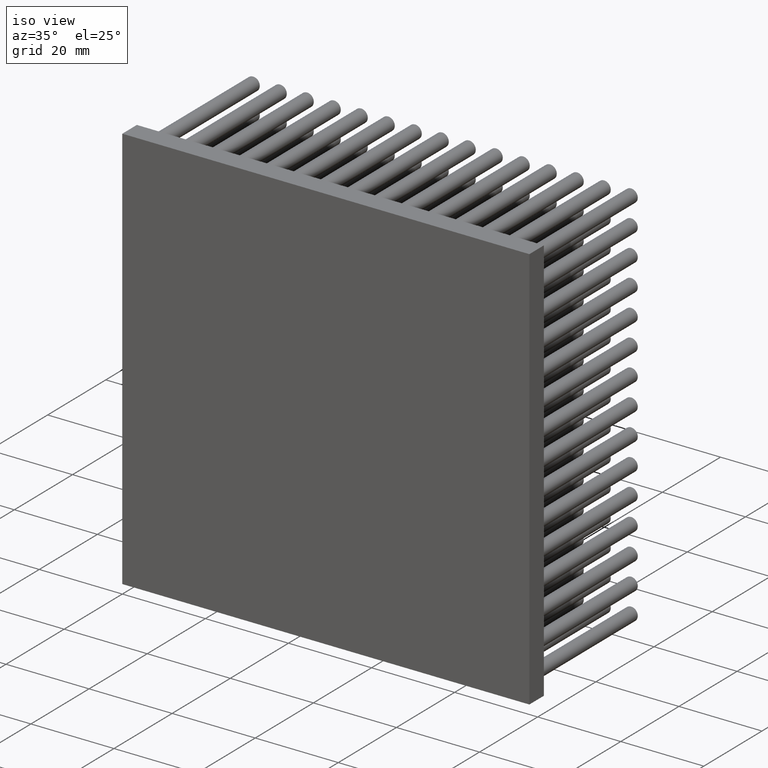
[diagram: clean part render]
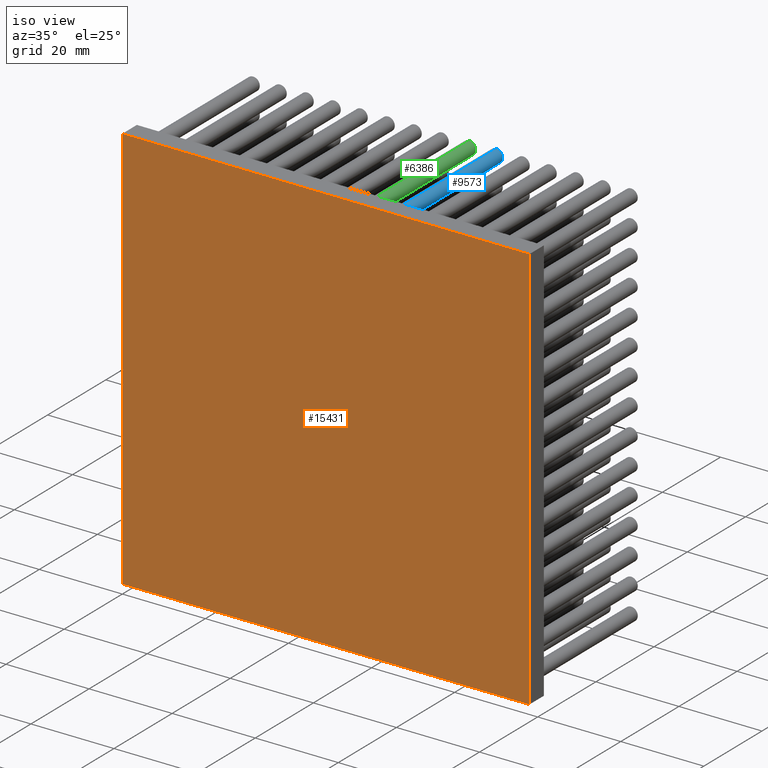
[diagram: same view with three faces highlighted in distinct colors, each labeled with its STEP entity id]
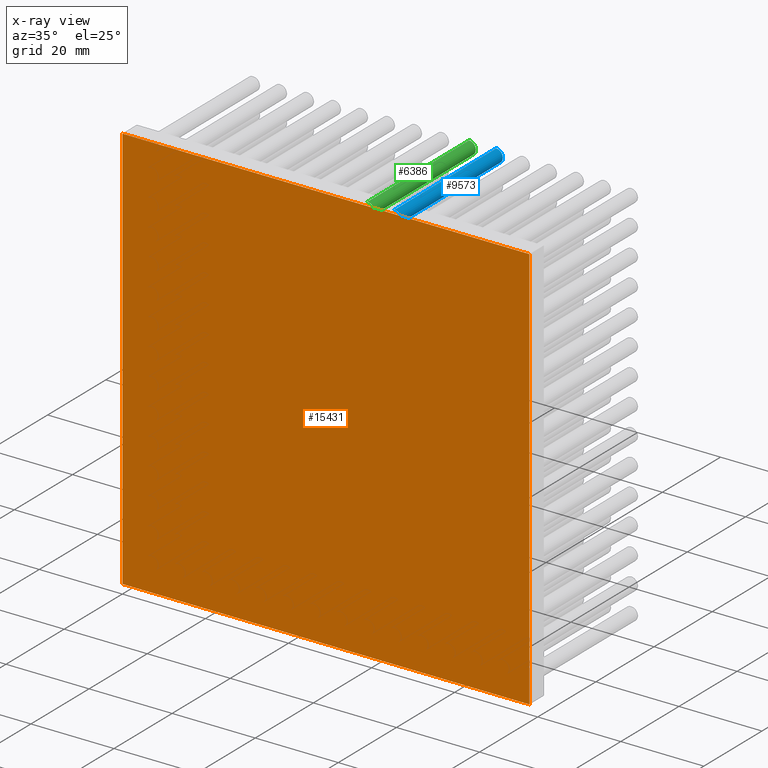
[diagram: x-ray of the same camera — body ghosted, the three highlighted faces saturated]
A machine part, iso view with three faces highlighted in distinct colors.
The next image is the same camera in x-ray (body ghosted, the three faces saturated) — at least one of them is partly hidden behind the body in this view.
Their STEP definitions:

[orange] entity #15431 — the highlighted planar face has unit normal (0, 1, 0).
#404 = CARTESIAN_POINT ( 'NONE',  ( 98.00000000000000000, 0.0000000000000000000, 0.0000000000000000000 ) ) ;
#792 = DIRECTION ( 'NONE',  ( 1.000000000000000000, 0.0000000000000000000, 0.0000000000000000000 ) ) ;
#1143 = DIRECTION ( 'NONE',  ( 1.224646799147353207E-16, 0.0000000000000000000, 1.000000000000000000 ) ) ;
#1345 = EDGE_CURVE ( 'NONE', #9358, #7000, #16054, .T. ) ;
#1599 = DIRECTION ( 'NONE',  ( 0.0000000000000000000, 1.000000000000000000, 0.0000000000000000000 ) ) ;
#2048 = DIRECTION ( 'NONE',  ( -1.416100796715760863E-16, -0.0000000000000000000, -1.000000000000000000 ) ) ;
#2992 = ORIENTED_EDGE ( 'NONE', *, *, #11688, .F. ) ;
#3655 = LINE ( 'NONE', #5297, #10957 ) ;
#4437 = ORIENTED_EDGE ( 'NONE', *, *, #1345, .F. ) ;
#5205 = LINE ( 'NONE', #17651, #11471 ) ;
#5297 = CARTESIAN_POINT ( 'NONE',  ( 0.0000000000000000000, 0.0000000000000000000, 0.0000000000000000000 ) ) ;
#6464 = LINE ( 'NONE', #13679, #12100 ) ;
#7000 = VERTEX_POINT ( 'NONE', #17023 ) ;
#8420 = CARTESIAN_POINT ( 'NONE',  ( 0.0000000000000000000, 0.0000000000000000000, 0.0000000000000000000 ) ) ;
#8573 = CARTESIAN_POINT ( 'NONE',  ( 0.0000000000000000000, 0.0000000000000000000, 0.0000000000000000000 ) ) ;
#8865 = EDGE_CURVE ( 'NONE', #10131, #9358, #5205, .T. ) ;
#9018 = ORIENTED_EDGE ( 'NONE', *, *, #9361, .F. ) ;
#9358 = VERTEX_POINT ( 'NONE', #16258 ) ;
#9361 = EDGE_CURVE ( 'NONE', #11012, #10131, #6464, .T. ) ;
#10131 = VERTEX_POINT ( 'NONE', #17372 ) ;
#10768 = VECTOR ( 'NONE', #2048, 1000.000000000000000 ) ;
#10841 = DIRECTION ( 'NONE',  ( -1.000000000000000000, -0.0000000000000000000, -0.0000000000000000000 ) ) ;
#10941 = EDGE_LOOP ( 'NONE', ( #9018, #2992, #4437, #15220 ) ) ;
#10957 = VECTOR ( 'NONE', #10841, 1000.000000000000000 ) ;
#11012 = VERTEX_POINT ( 'NONE', #8420 ) ;
#11471 = VECTOR ( 'NONE', #792, 1000.000000000000000 ) ;
#11688 = EDGE_CURVE ( 'NONE', #7000, #11012, #3655, .T. ) ;
#12100 = VECTOR ( 'NONE', #1143, 1000.000000000000000 ) ;
#12830 = DIRECTION ( 'NONE',  ( 0.0000000000000000000, -0.0000000000000000000, 1.000000000000000000 ) ) ;
#13305 = AXIS2_PLACEMENT_3D ( 'NONE', #8573, #1599, #12830 ) ;
#13679 = CARTESIAN_POINT ( 'NONE',  ( 0.0000000000000000000, 0.0000000000000000000, 0.0000000000000000000 ) ) ;
#15220 = ORIENTED_EDGE ( 'NONE', *, *, #8865, .F. ) ;
#15431 = ADVANCED_FACE ( 'NONE', ( #15584 ), #17148, .F. ) ;
#15584 = FACE_OUTER_BOUND ( 'NONE', #10941, .T. ) ;
#16054 = LINE ( 'NONE', #404, #10768 ) ;
#16258 = CARTESIAN_POINT ( 'NONE',  ( 98.00000000000001421, 0.0000000000000000000, 98.00000000000000000 ) ) ;
#17023 = CARTESIAN_POINT ( 'NONE',  ( 98.00000000000000000, 0.0000000000000000000, 0.0000000000000000000 ) ) ;
#17148 = PLANE ( 'NONE',  #13305 ) ;
#17372 = CARTESIAN_POINT ( 'NONE',  ( 1.200153863164406030E-14, 0.0000000000000000000, 98.00000000000000000 ) ) ;
#17651 = CARTESIAN_POINT ( 'NONE',  ( 1.200153863164406030E-14, 0.0000000000000000000, 98.00000000000000000 ) ) ;

[blue] entity #9573 — the highlighted cylindrical surface (edge-blend (fillet) strip) has radius 1.6 mm, axis along (-0, -1, -0).
#24 = AXIS2_PLACEMENT_3D ( 'NONE', #552, #11423, #288 ) ;
#288 = DIRECTION ( 'NONE',  ( 0.0000000000000000000, 0.0000000000000000000, 1.000000000000000000 ) ) ;
#552 = CARTESIAN_POINT ( 'NONE',  ( 62.00000000000001421, 5.000000000000000000, 94.49999999999998579 ) ) ;
#850 = DIRECTION ( 'NONE',  ( 0.0000000000000000000, 1.000000000000000000, 0.0000000000000000000 ) ) ;
#1339 = FACE_OUTER_BOUND ( 'NONE', #3716, .T. ) ;
#1968 = EDGE_CURVE ( 'NONE', #9332, #7893, #2382, .T. ) ;
#2099 = AXIS2_PLACEMENT_3D ( 'NONE', #6461, #850, #3523 ) ;
#2382 = LINE ( 'NONE', #7982, #11517 ) ;
#3110 = EDGE_CURVE ( 'NONE', #9332, #10579, #10633, .T. ) ;
#3523 = DIRECTION ( 'NONE',  ( 0.0000000000000000000, 0.0000000000000000000, 1.000000000000000000 ) ) ;
#3558 = CARTESIAN_POINT ( 'NONE',  ( 62.00000000000001421, 5.000000000000000000, 92.89999999999997726 ) ) ;
#3716 = EDGE_LOOP ( 'NONE', ( #10064, #8443, #10422, #4992 ) ) ;
#4184 = CARTESIAN_POINT ( 'NONE',  ( 62.00000000000001421, 40.00000000000000000, 92.89999999999997726 ) ) ;
#4274 = CYLINDRICAL_SURFACE ( 'NONE', #11804, 1.600000000000004086 ) ;
#4732 = CARTESIAN_POINT ( 'NONE',  ( 62.00000000000001421, 40.00000000000000000, 92.89999999999997726 ) ) ;
#4992 = ORIENTED_EDGE ( 'NONE', *, *, #11111, .F. ) ;
#5542 = DIRECTION ( 'NONE',  ( -0.0000000000000000000, -1.000000000000000000, -0.0000000000000000000 ) ) ;
#5652 = VECTOR ( 'NONE', #9815, 1000.000000000000000 ) ;
#6187 = CIRCLE ( 'NONE', #24, 1.600000000000004086 ) ;
#6461 = CARTESIAN_POINT ( 'NONE',  ( 62.00000000000001421, 40.00000000000000000, 94.49999999999998579 ) ) ;
#7893 = VERTEX_POINT ( 'NONE', #9972 ) ;
#7982 = CARTESIAN_POINT ( 'NONE',  ( 62.00000000000001421, 40.00000000000000000, 96.09999999999999432 ) ) ;
#8443 = ORIENTED_EDGE ( 'NONE', *, *, #1968, .T. ) ;
#9332 = VERTEX_POINT ( 'NONE', #12287 ) ;
#9573 = ADVANCED_FACE ( 'NONE', ( #1339 ), #4274, .T. ) ;
#9815 = DIRECTION ( 'NONE',  ( -0.0000000000000000000, -1.000000000000000000, -0.0000000000000000000 ) ) ;
#9972 = CARTESIAN_POINT ( 'NONE',  ( 62.00000000000001421, 5.000000000000000000, 96.09999999999999432 ) ) ;
#10064 = ORIENTED_EDGE ( 'NONE', *, *, #3110, .F. ) ;
#10422 = ORIENTED_EDGE ( 'NONE', *, *, #14177, .T. ) ;
#10579 = VERTEX_POINT ( 'NONE', #4732 ) ;
#10633 = CIRCLE ( 'NONE', #2099, 1.600000000000004086 ) ;
#11111 = EDGE_CURVE ( 'NONE', #10579, #11737, #16799, .T. ) ;
#11423 = DIRECTION ( 'NONE',  ( 0.0000000000000000000, 1.000000000000000000, 0.0000000000000000000 ) ) ;
#11517 = VECTOR ( 'NONE', #13624, 1000.000000000000000 ) ;
#11737 = VERTEX_POINT ( 'NONE', #3558 ) ;
#11804 = AXIS2_PLACEMENT_3D ( 'NONE', #18184, #5542, #16790 ) ;
#12287 = CARTESIAN_POINT ( 'NONE',  ( 62.00000000000001421, 40.00000000000000000, 96.09999999999999432 ) ) ;
#13624 = DIRECTION ( 'NONE',  ( -0.0000000000000000000, -1.000000000000000000, -0.0000000000000000000 ) ) ;
#14177 = EDGE_CURVE ( 'NONE', #7893, #11737, #6187, .T. ) ;
#16790 = DIRECTION ( 'NONE',  ( 0.0000000000000000000, 0.0000000000000000000, -1.000000000000000000 ) ) ;
#16799 = LINE ( 'NONE', #4184, #5652 ) ;
#18184 = CARTESIAN_POINT ( 'NONE',  ( 62.00000000000001421, 40.00000000000000000, 94.49999999999998579 ) ) ;

[green] entity #6386 — the highlighted cylindrical surface (edge-blend (fillet) strip) has radius 1.6 mm, axis along (-0, -1, -0).
#457 = LINE ( 'NONE', #13242, #3639 ) ;
#923 = CIRCLE ( 'NONE', #11215, 1.600000000000004086 ) ;
#1061 = CARTESIAN_POINT ( 'NONE',  ( 55.50000000000001421, 40.00000000000000000, 96.09999999999999432 ) ) ;
#2111 = DIRECTION ( 'NONE',  ( -0.0000000000000000000, -1.000000000000000000, -0.0000000000000000000 ) ) ;
#2285 = ORIENTED_EDGE ( 'NONE', *, *, #6394, .T. ) ;
#2307 = DIRECTION ( 'NONE',  ( -0.0000000000000000000, -1.000000000000000000, -0.0000000000000000000 ) ) ;
#2461 = EDGE_CURVE ( 'NONE', #7052, #11143, #11841, .T. ) ;
#2772 = CARTESIAN_POINT ( 'NONE',  ( 55.50000000000001421, 5.000000000000000000, 94.49999999999998579 ) ) ;
#3129 = EDGE_CURVE ( 'NONE', #17750, #7517, #923, .T. ) ;
#3639 = VECTOR ( 'NONE', #2111, 1000.000000000000000 ) ;
#4241 = DIRECTION ( 'NONE',  ( 0.0000000000000000000, 1.000000000000000000, 0.0000000000000000000 ) ) ;
#5065 = LINE ( 'NONE', #16313, #8328 ) ;
#5245 = ORIENTED_EDGE ( 'NONE', *, *, #7148, .F. ) ;
#5702 = CARTESIAN_POINT ( 'NONE',  ( 55.50000000000001421, 5.000000000000000000, 96.09999999999999432 ) ) ;
#6161 = FACE_OUTER_BOUND ( 'NONE', #17038, .T. ) ;
#6386 = ADVANCED_FACE ( 'NONE', ( #6161 ), #7732, .T. ) ;
#6394 = EDGE_CURVE ( 'NONE', #17750, #7052, #5065, .T. ) ;
#7052 = VERTEX_POINT ( 'NONE', #5702 ) ;
#7148 = EDGE_CURVE ( 'NONE', #7517, #11143, #457, .T. ) ;
#7203 = CARTESIAN_POINT ( 'NONE',  ( 55.50000000000001421, 5.000000000000000000, 92.89999999999997726 ) ) ;
#7517 = VERTEX_POINT ( 'NONE', #9081 ) ;
#7732 = CYLINDRICAL_SURFACE ( 'NONE', #15981, 1.600000000000004086 ) ;
#7767 = CARTESIAN_POINT ( 'NONE',  ( 55.50000000000001421, 40.00000000000000000, 94.49999999999998579 ) ) ;
#8328 = VECTOR ( 'NONE', #2307, 1000.000000000000000 ) ;
#8390 = ORIENTED_EDGE ( 'NONE', *, *, #3129, .F. ) ;
#9081 = CARTESIAN_POINT ( 'NONE',  ( 55.50000000000001421, 40.00000000000000000, 92.89999999999997726 ) ) ;
#9422 = DIRECTION ( 'NONE',  ( 0.0000000000000000000, 1.000000000000000000, 0.0000000000000000000 ) ) ;
#11143 = VERTEX_POINT ( 'NONE', #7203 ) ;
#11215 = AXIS2_PLACEMENT_3D ( 'NONE', #7767, #9422, #14688 ) ;
#11778 = CARTESIAN_POINT ( 'NONE',  ( 55.50000000000001421, 40.00000000000000000, 94.49999999999998579 ) ) ;
#11841 = CIRCLE ( 'NONE', #17436, 1.600000000000004086 ) ;
#13242 = CARTESIAN_POINT ( 'NONE',  ( 55.50000000000001421, 40.00000000000000000, 92.89999999999997726 ) ) ;
#13363 = DIRECTION ( 'NONE',  ( -0.0000000000000000000, -1.000000000000000000, -0.0000000000000000000 ) ) ;
#14662 = ORIENTED_EDGE ( 'NONE', *, *, #2461, .T. ) ;
#14688 = DIRECTION ( 'NONE',  ( 0.0000000000000000000, 0.0000000000000000000, 1.000000000000000000 ) ) ;
#15981 = AXIS2_PLACEMENT_3D ( 'NONE', #11778, #13363, #16393 ) ;
#16313 = CARTESIAN_POINT ( 'NONE',  ( 55.50000000000001421, 40.00000000000000000, 96.09999999999999432 ) ) ;
#16393 = DIRECTION ( 'NONE',  ( 0.0000000000000000000, 0.0000000000000000000, -1.000000000000000000 ) ) ;
#16587 = DIRECTION ( 'NONE',  ( 0.0000000000000000000, 0.0000000000000000000, 1.000000000000000000 ) ) ;
#17038 = EDGE_LOOP ( 'NONE', ( #8390, #2285, #14662, #5245 ) ) ;
#17436 = AXIS2_PLACEMENT_3D ( 'NONE', #2772, #4241, #16587 ) ;
#17750 = VERTEX_POINT ( 'NONE', #1061 ) ;